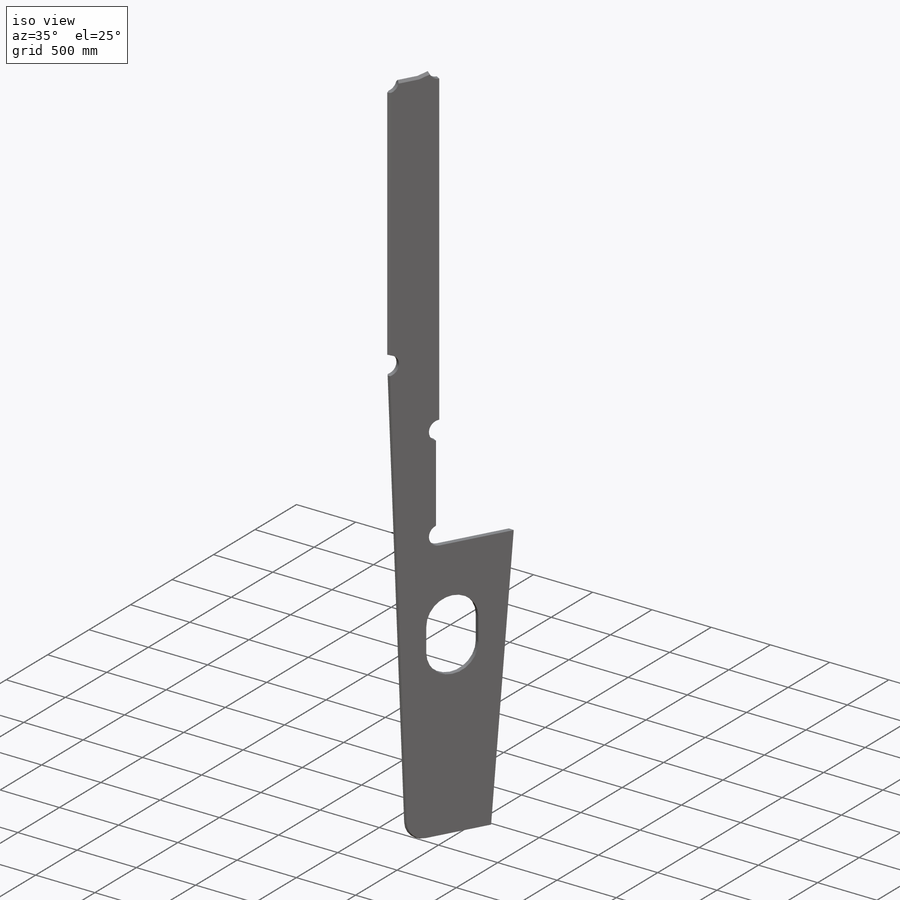
[diagram: iso view]
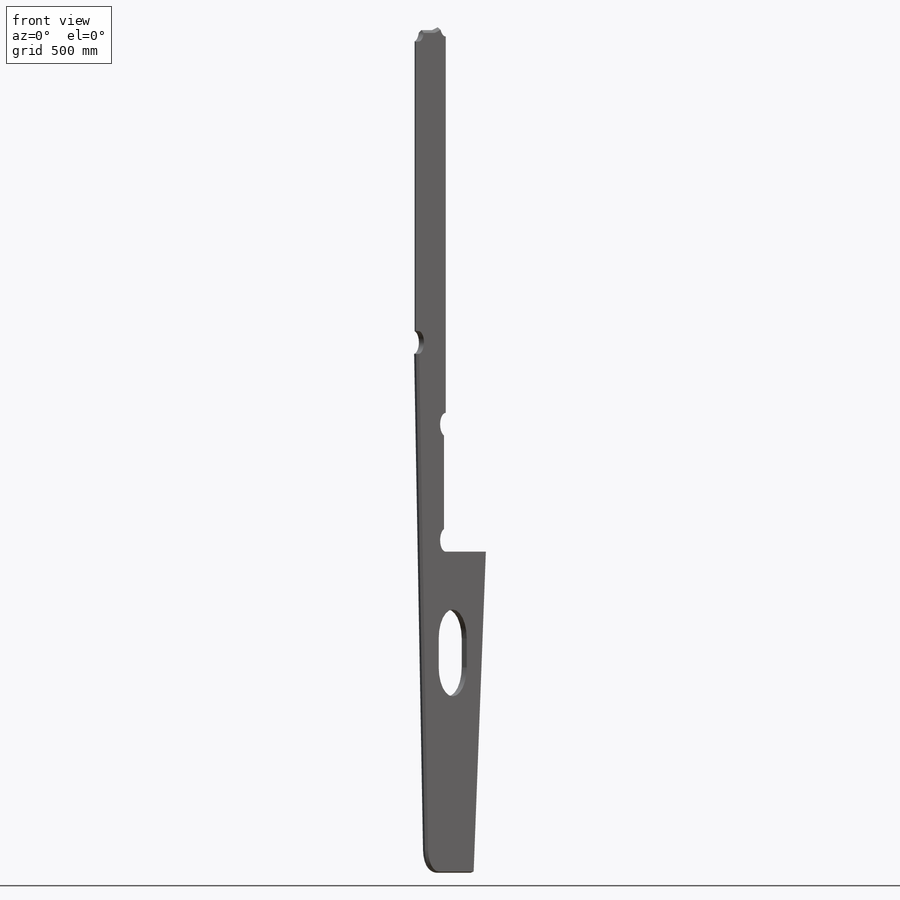
[diagram: front view]
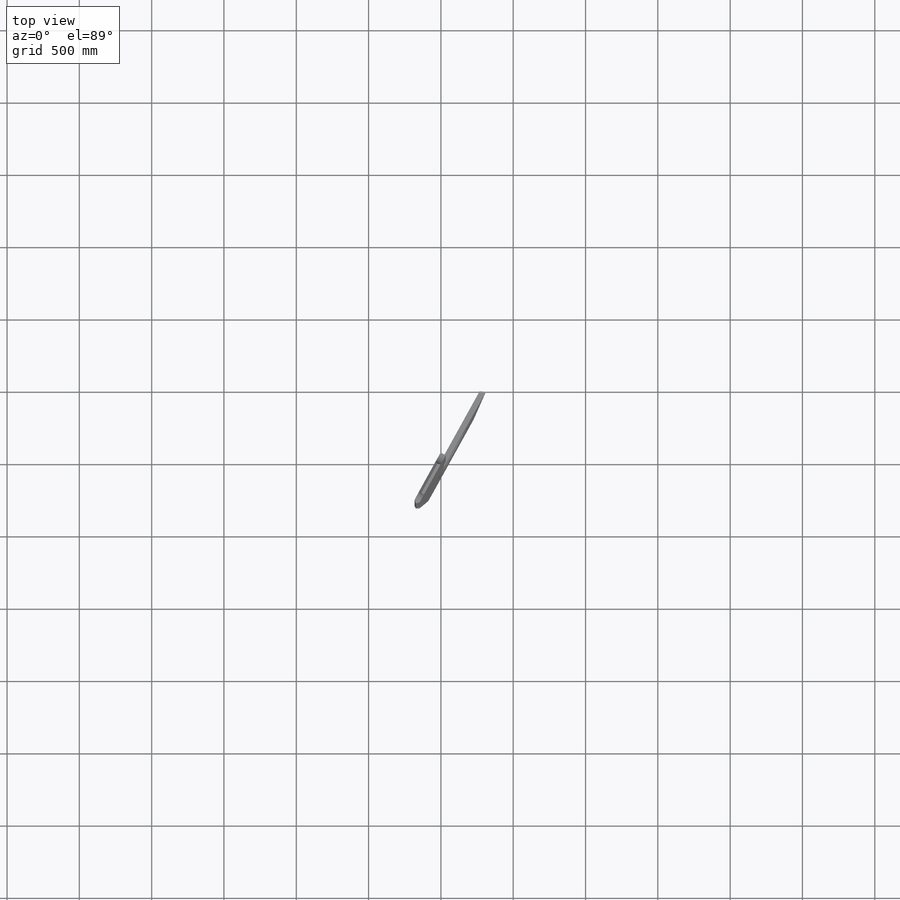
[diagram: top view]
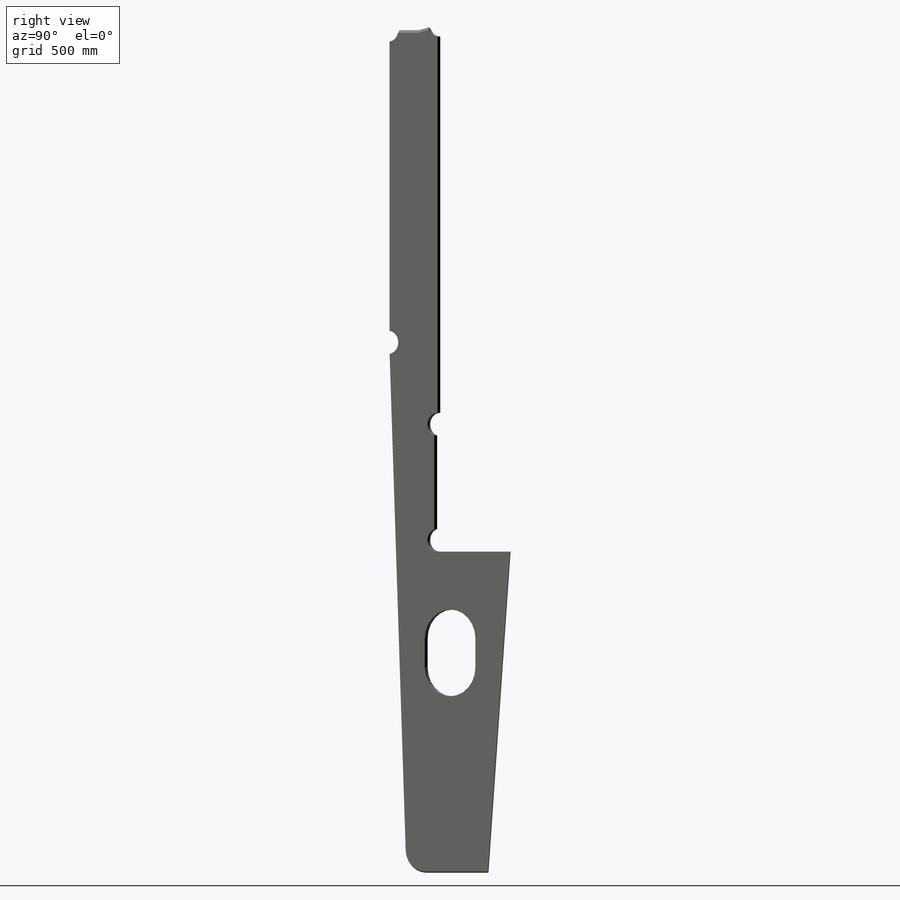
[diagram: right view]
SOLIDWORKS PART (.sldprt)
format: sldprt  version: not decoded by parser v0  size: 303,616 bytes
history: native  units: mm
features: plane x4, sketch x3, chamfer x3, material x1, extrude x1, cut_extrude x1 (+9 scaffold rows collapsed)
feature tree (22):
  scaffold x9  (default folders/planes/origin — collapsed)
  material  "Grade DH36"
  plane  "MS"
  plane  "Basis"
  plane  "Spt0"
  plane  "29°"
  sketch  "Sketch1"
  sketch  "Sketch2"  dims[c1.D8=160.0mm c1.D9=160.0mm c1.D6=160.0mm c1.D7=160.0mm c2.D9=100.0mm c2.D2=160.0mm c2.D1=80.0mm c2.D3=~54.525679mm c2.D8=80.0mm c2.D11=160.0mm c3.D1=2761.0mm c3.D2=500.0mm c3.D3=~1792.257658mm c3.D4=1950.0mm c3.D5=2000.0mm c3.D6=800.0mm c3.D7=4136.0mm c4.D3=~1477.214679mm c4.D8=1640.0mm c4.D2=1000.0mm c5.D3=~1477.214679mm c5.D1=800.0mm c6.D3=1380.0mm c6.D2=11160.0mm c7.D3=13900.0mm c7.D9=15287.0mm c7.D10=710.0mm c7.D11=25.0mm c7.D12=17482.0mm c7.D13=~1565.889198mm c7.D2=1100.0mm c7.D4=25.0mm c7.D5=~196.897831mm c8.D3=15390.0mm]
  extrude  "Extrude1"  Depth=40mm
  sketch  "Sketch4"  dims[D1=400.0mm D2=400.0mm D3=200.0mm D4=600.0mm D5=1200.0mm]
  cut_extrude  "Cut-Extrude2"  [1 undecoded]
  chamfer  "Fase1"  Distance=19mm Angle=25deg
  chamfer  "Fase2"  Distance=19mm Angle=45deg
  chamfer  "Fase3"  Distance=38mm Angle=24deg
decode coverage: 6 of 8 modeling features carry decoded parameters
note: ~ marks probable driven/reference dimensions
note: 1 parameter value undecoded
note: suppression state not decoded; provenance and decode notes live in map.json
